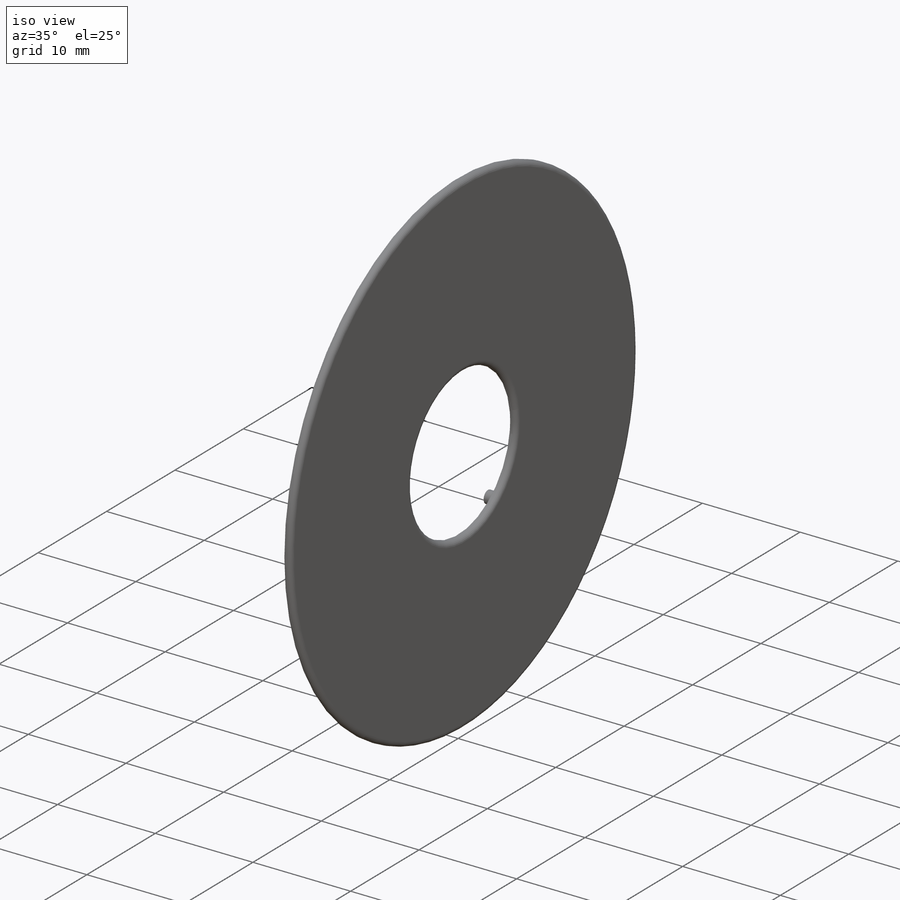
[diagram: iso view]
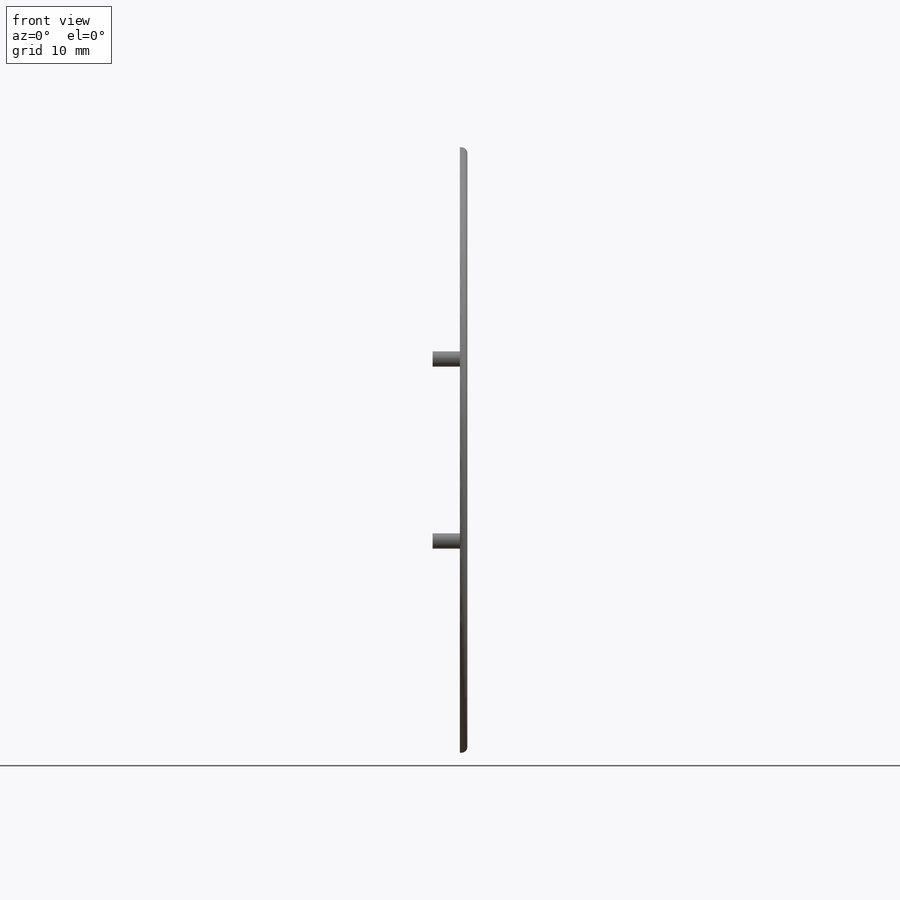
[diagram: front view]
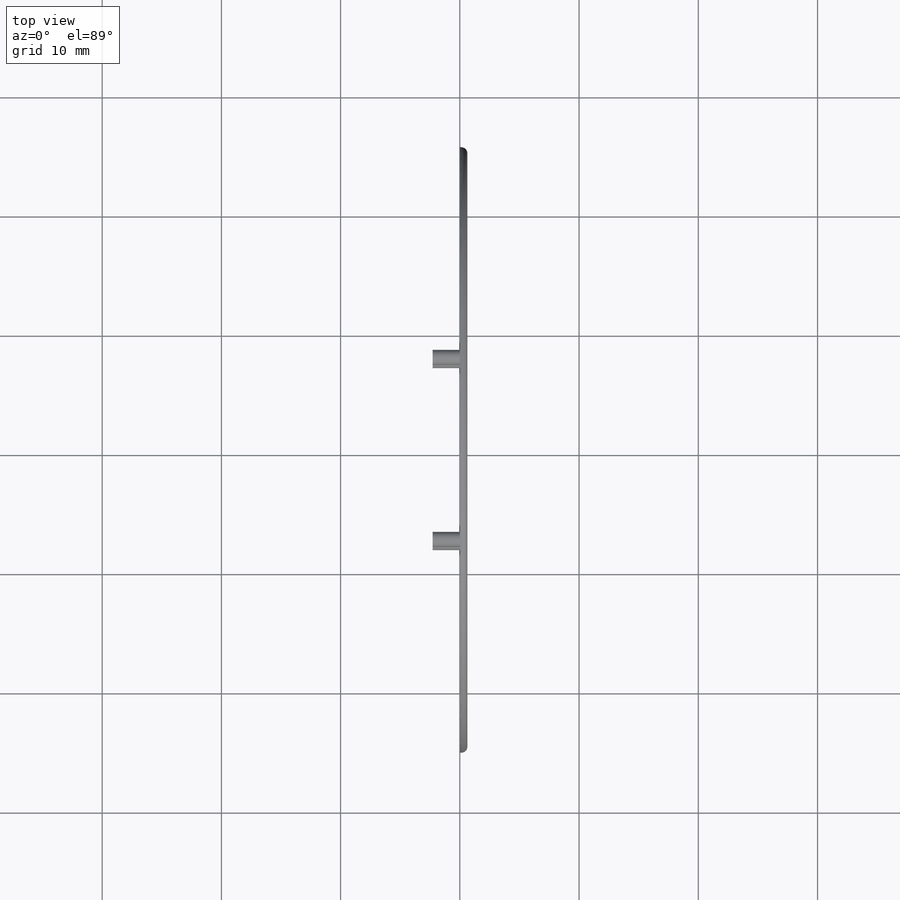
[diagram: top view]
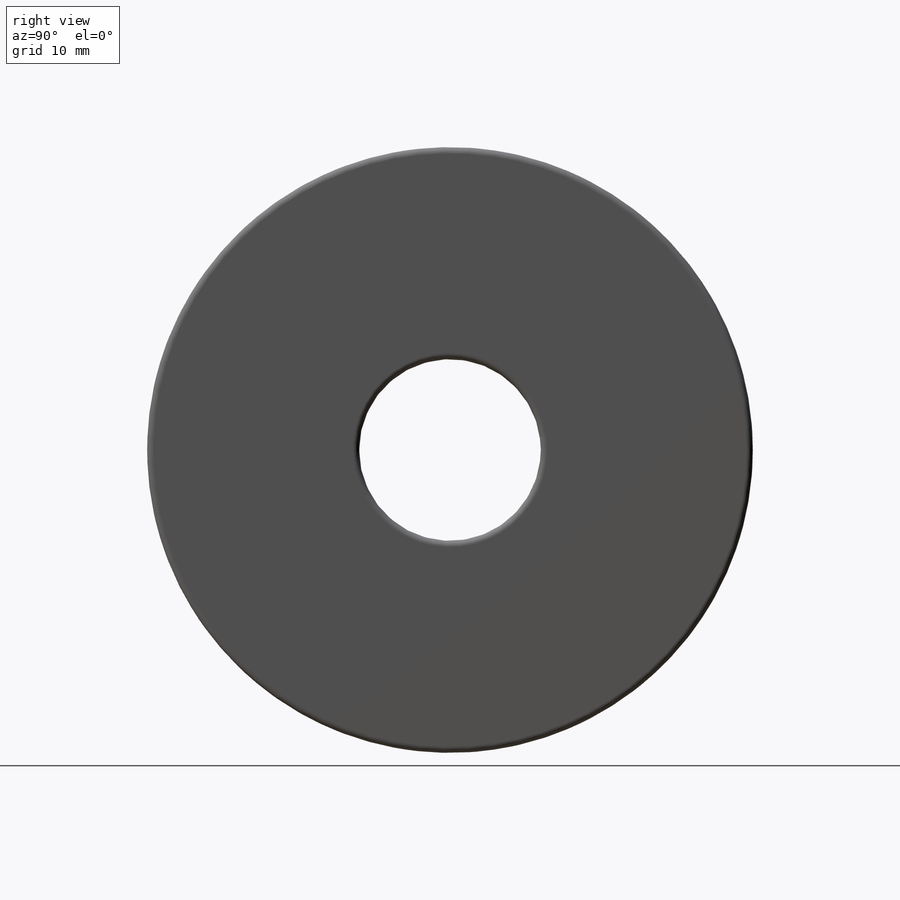
[diagram: right view]
SOLIDWORKS PART (.sldprt)
format: sldprt  version: not decoded by parser v0  size: 177,664 bytes
history: native  units: mm
features: sketch x2, extrude x2, material x1, fillet x1 (+13 scaffold rows collapsed)
feature tree (19):
  scaffold x13  (default folders/planes/origin — collapsed)
  material  "Material <not specified>"
  sketch  "Sketch1"  dims[D1=15.24mm D2=50.8mm]
  extrude  "Boss-Extrude1"  Depth=0.635mm
  fillet  "Fillet1"  Radius=0.508mm
  sketch  "Sketch2"  dims[c1.D1=21.59mm c1.D2=1.27mm c1.D3=10.795mm c2.D3=45.0deg c2.D4=4.0]
  extrude  "Boss-Extrude2"  Depth=2.286mm
decode coverage: 5 of 5 modeling features carry decoded parameters
note: suppression state not decoded; provenance and decode notes live in map.json
